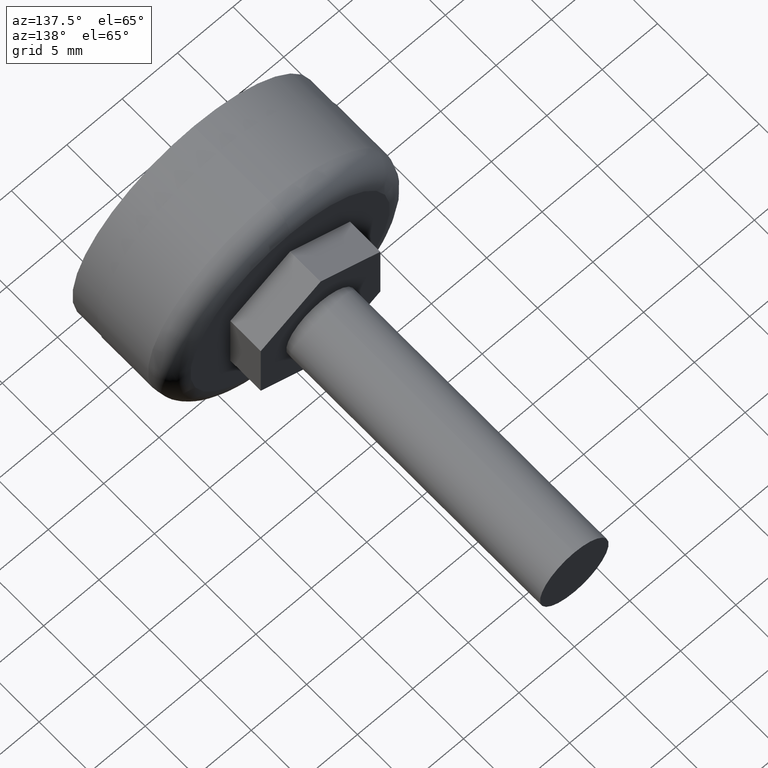
[diagram: clean part render]
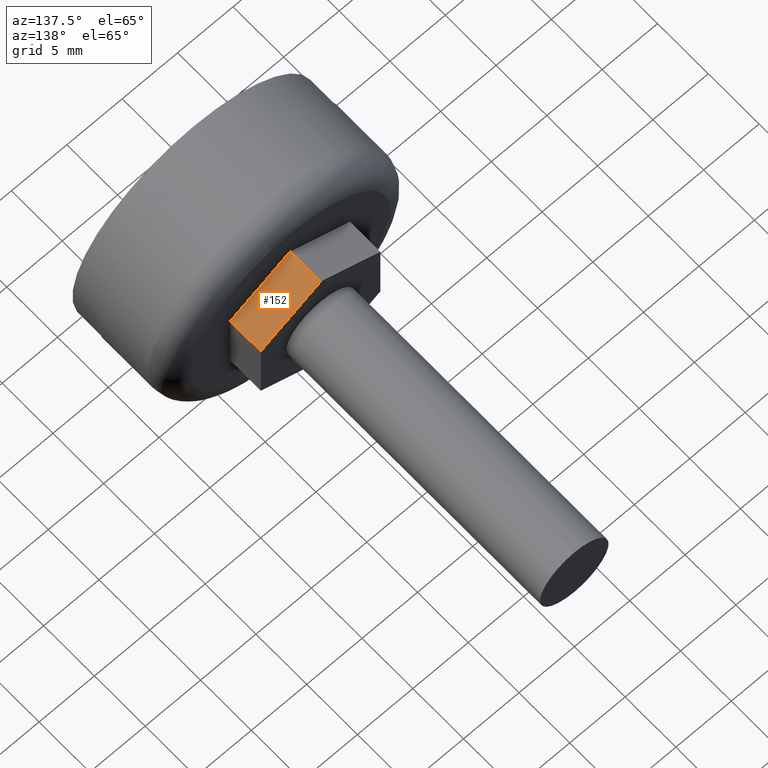
[diagram: same view with one face highlighted and labeled with its STEP entity id]
A machine part, auxiliary view. The second image highlights one B-rep face of the part: STEP entity #152.
In plain terms, the highlighted planar face has unit normal (-0.5, 0, -0.866).
Its self-contained STEP definition (entity closure, byte-faithful):
#7 = EDGE_CURVE ( 'NONE', #85, #91, #275, .T. ) ;
#27 = EDGE_CURVE ( 'NONE', #85, #69, #313, .T. ) ;
#41 = EDGE_CURVE ( 'NONE', #91, #92, #301, .T. ) ;
#69 = VERTEX_POINT ( 'NONE', #187 ) ;
#85 = VERTEX_POINT ( 'NONE', #173 ) ;
#91 = VERTEX_POINT ( 'NONE', #205 ) ;
#92 = VERTEX_POINT ( 'NONE', #214 ) ;
#111 = DIRECTION ( 'NONE',  ( -0.8660254037844387100, 0.0000000000000000000, 0.4999999999999997800 ) ) ;
#120 = PLANE ( 'NONE',  #222 ) ;
#121 = CARTESIAN_POINT ( 'NONE',  ( 5.399999999999999500, 10.00000000000000000, 3.117691453623982600 ) ) ;
#125 = DIRECTION ( 'NONE',  ( -0.4999999999999998300, 0.0000000000000000000, -0.8660254037844388200 ) ) ;
#129 = CARTESIAN_POINT ( 'NONE',  ( -7.872804065101680700E-016, 10.00000000000000000, 6.235382907247959800 ) ) ;
#134 = DIRECTION ( 'NONE',  ( -0.0000000000000000000, -1.000000000000000000, -0.0000000000000000000 ) ) ;
#152 = ADVANCED_FACE ( 'NONE', ( #321 ), #120, .F. ) ;
#171 = DIRECTION ( 'NONE',  ( 0.8660254037844387100, 0.0000000000000000000, -0.4999999999999997200 ) ) ;
#173 = CARTESIAN_POINT ( 'NONE',  ( -7.872804065101680700E-016, 10.00000000000000000, 6.235382907247959800 ) ) ;
#176 = CARTESIAN_POINT ( 'NONE',  ( -7.872804065101680700E-016, 7.000000000000000000, 6.235382907247959800 ) ) ;
#187 = CARTESIAN_POINT ( 'NONE',  ( 5.399999999999999500, 10.00000000000000000, 3.117691453623982600 ) ) ;
#205 = CARTESIAN_POINT ( 'NONE',  ( -7.872804065101680700E-016, 7.000000000000000000, 6.235382907247959800 ) ) ;
#214 = CARTESIAN_POINT ( 'NONE',  ( 5.399999999999999500, 7.000000000000000000, 3.117691453623982600 ) ) ;
#222 = AXIS2_PLACEMENT_3D ( 'NONE', #129, #125, #111 ) ;
#254 = VECTOR ( 'NONE', #171, 1000.000000000000100 ) ;
#275 = LINE ( 'NONE', #593, #304 ) ;
#301 = LINE ( 'NONE', #176, #254 ) ;
#304 = VECTOR ( 'NONE', #576, 1000.000000000000000 ) ;
#313 = LINE ( 'NONE', #594, #315 ) ;
#315 = VECTOR ( 'NONE', #565, 1000.000000000000100 ) ;
#321 = FACE_OUTER_BOUND ( 'NONE', #503, .T. ) ;
#349 = EDGE_CURVE ( 'NONE', #69, #92, #403, .T. ) ;
#385 = VECTOR ( 'NONE', #134, 1000.000000000000000 ) ;
#403 = LINE ( 'NONE', #121, #385 ) ;
#455 = ORIENTED_EDGE ( 'NONE', *, *, #349, .F. ) ;
#461 = ORIENTED_EDGE ( 'NONE', *, *, #7, .T. ) ;
#463 = ORIENTED_EDGE ( 'NONE', *, *, #41, .T. ) ;
#490 = ORIENTED_EDGE ( 'NONE', *, *, #27, .F. ) ;
#503 = EDGE_LOOP ( 'NONE', ( #463, #455, #490, #461 ) ) ;
#565 = DIRECTION ( 'NONE',  ( 0.8660254037844387100, 0.0000000000000000000, -0.4999999999999997200 ) ) ;
#576 = DIRECTION ( 'NONE',  ( -0.0000000000000000000, -1.000000000000000000, -0.0000000000000000000 ) ) ;
#593 = CARTESIAN_POINT ( 'NONE',  ( -7.872804065101680700E-016, 10.00000000000000000, 6.235382907247959800 ) ) ;
#594 = CARTESIAN_POINT ( 'NONE',  ( -7.872804065101680700E-016, 10.00000000000000000, 6.235382907247959800 ) ) ;